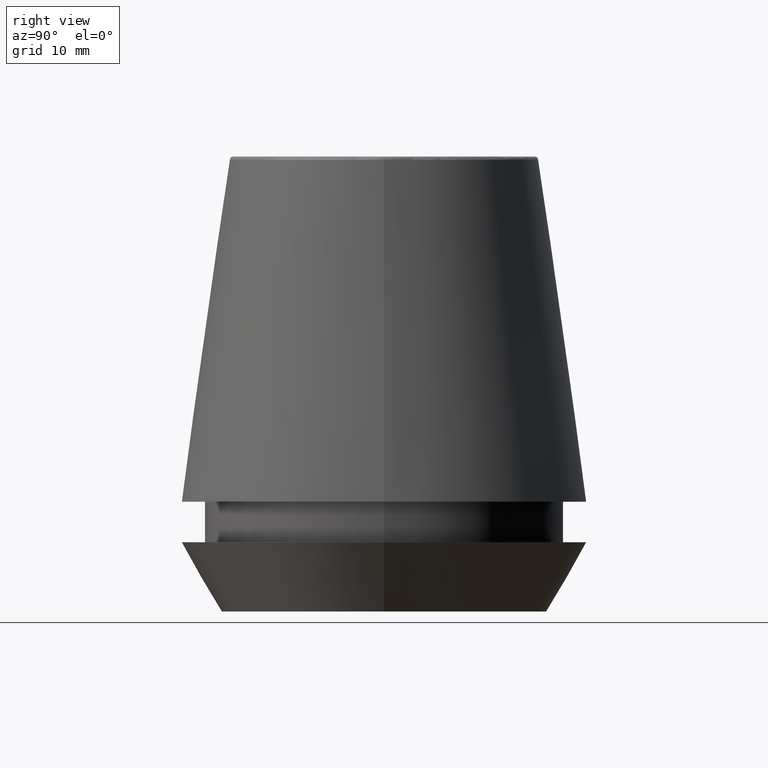
[diagram: clean part render]
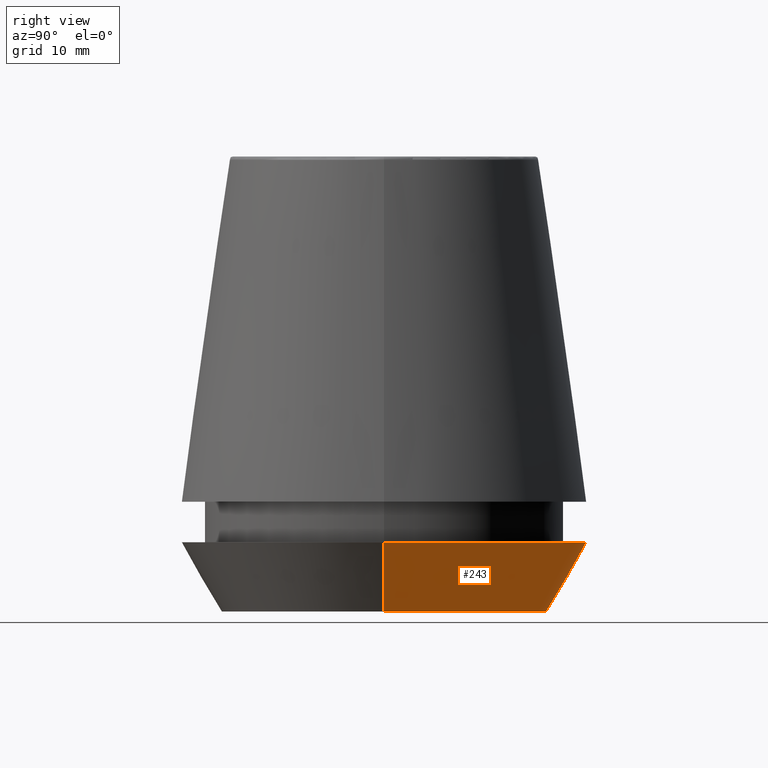
[diagram: same view with one face highlighted and labeled with its STEP entity id]
A machine part, right view. The second image highlights one B-rep face of the part: STEP entity #243.
In plain terms, the highlighted conical surface has half-angle 30 deg.
Its self-contained STEP definition (entity closure, byte-faithful):
#14 = AXIS2_PLACEMENT_3D ( 'NONE', #184, #382, #358 ) ;
#21 = CARTESIAN_POINT ( 'NONE',  ( -16.45854811567268100, 2.015590826847124800E-015, 0.0000000000000000000 ) ) ;
#29 = DIRECTION ( 'NONE',  ( 1.000000000000000000, 0.0000000000000000000, 0.0000000000000000000 ) ) ;
#51 = EDGE_CURVE ( 'NONE', #305, #273, #83, .T. ) ;
#65 = CIRCLE ( 'NONE', #211, 16.45854811567268100 ) ;
#69 = VECTOR ( 'NONE', #190, 1000.000000000000000 ) ;
#83 = LINE ( 'NONE', #21, #69 ) ;
#107 = CARTESIAN_POINT ( 'NONE',  ( 16.45854811567268100, 0.0000000000000000000, 0.0000000000000000000 ) ) ;
#155 = EDGE_CURVE ( 'NONE', #188, #273, #379, .T. ) ;
#161 = CARTESIAN_POINT ( 'NONE',  ( 0.0000000000000000000, 0.0000000000000000000, 0.0000000000000000000 ) ) ;
#164 = EDGE_CURVE ( 'NONE', #304, #305, #65, .T. ) ;
#184 = CARTESIAN_POINT ( 'NONE',  ( 0.0000000000000000000, 0.0000000000000000000, 7.000000000000006200 ) ) ;
#185 = CONICAL_SURFACE ( 'NONE', #334, 16.45854811567268100, 0.5235987755982921500 ) ;
#188 = VERTEX_POINT ( 'NONE', #195 ) ;
#190 = DIRECTION ( 'NONE',  ( -0.4999999999999941700, 6.123233995736694500E-017, 0.8660254037844420400 ) ) ;
#193 = DIRECTION ( 'NONE',  ( 1.000000000000000000, 0.0000000000000000000, 0.0000000000000000000 ) ) ;
#195 = CARTESIAN_POINT ( 'NONE',  ( 20.50000000000000000, 0.0000000000000000000, 7.000000000000006200 ) ) ;
#208 = ORIENTED_EDGE ( 'NONE', *, *, #51, .T. ) ;
#211 = AXIS2_PLACEMENT_3D ( 'NONE', #161, #377, #193 ) ;
#234 = ORIENTED_EDGE ( 'NONE', *, *, #155, .F. ) ;
#243 = ADVANCED_FACE ( 'NONE', ( #276 ), #185, .T. ) ;
#260 = CARTESIAN_POINT ( 'NONE',  ( -20.50000000000000000, 2.510525938252074100E-015, 7.000000000000006200 ) ) ;
#262 = CARTESIAN_POINT ( 'NONE',  ( 16.45854811567268100, 0.0000000000000000000, 0.0000000000000000000 ) ) ;
#263 = ORIENTED_EDGE ( 'NONE', *, *, #319, .F. ) ;
#273 = VERTEX_POINT ( 'NONE', #260 ) ;
#276 = FACE_OUTER_BOUND ( 'NONE', #387, .T. ) ;
#300 = DIRECTION ( 'NONE',  ( -0.0000000000000000000, -0.0000000000000000000, 1.000000000000000000 ) ) ;
#304 = VERTEX_POINT ( 'NONE', #262 ) ;
#305 = VERTEX_POINT ( 'NONE', #363 ) ;
#319 = EDGE_CURVE ( 'NONE', #304, #188, #349, .T. ) ;
#323 = ORIENTED_EDGE ( 'NONE', *, *, #164, .T. ) ;
#324 = DIRECTION ( 'NONE',  ( 0.4999999999999941700, 0.0000000000000000000, 0.8660254037844420400 ) ) ;
#334 = AXIS2_PLACEMENT_3D ( 'NONE', #368, #300, #29 ) ;
#349 = LINE ( 'NONE', #107, #380 ) ;
#358 = DIRECTION ( 'NONE',  ( 1.000000000000000000, 0.0000000000000000000, 0.0000000000000000000 ) ) ;
#363 = CARTESIAN_POINT ( 'NONE',  ( -16.45854811567268100, 2.263058382549599700E-015, 0.0000000000000000000 ) ) ;
#368 = CARTESIAN_POINT ( 'NONE',  ( 0.0000000000000000000, 0.0000000000000000000, 0.0000000000000000000 ) ) ;
#377 = DIRECTION ( 'NONE',  ( -0.0000000000000000000, -0.0000000000000000000, 1.000000000000000000 ) ) ;
#379 = CIRCLE ( 'NONE', #14, 20.50000000000000000 ) ;
#380 = VECTOR ( 'NONE', #324, 1000.000000000000000 ) ;
#382 = DIRECTION ( 'NONE',  ( -0.0000000000000000000, -0.0000000000000000000, 1.000000000000000000 ) ) ;
#387 = EDGE_LOOP ( 'NONE', ( #323, #208, #234, #263 ) ) ;